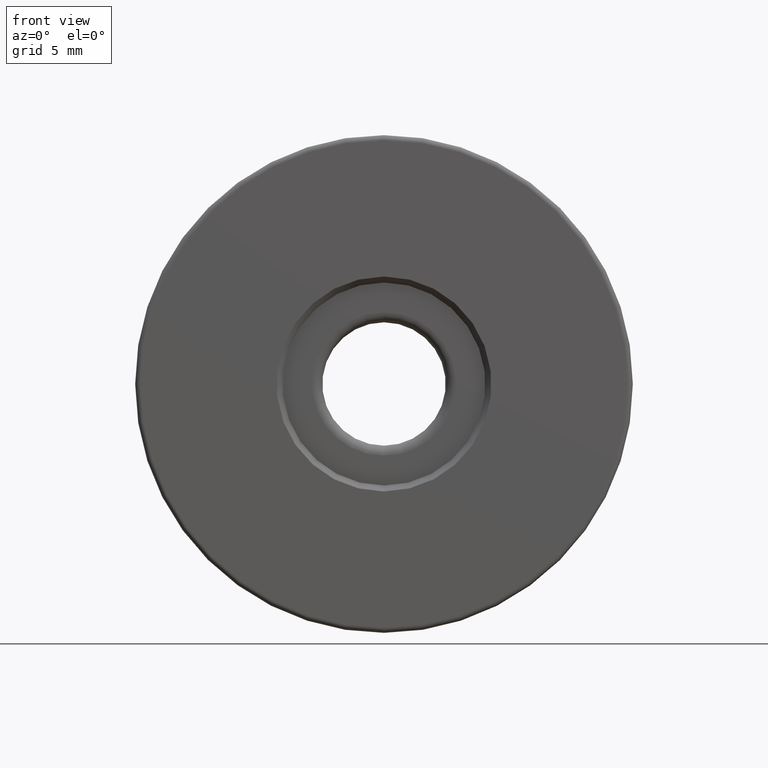
[diagram: clean part render]
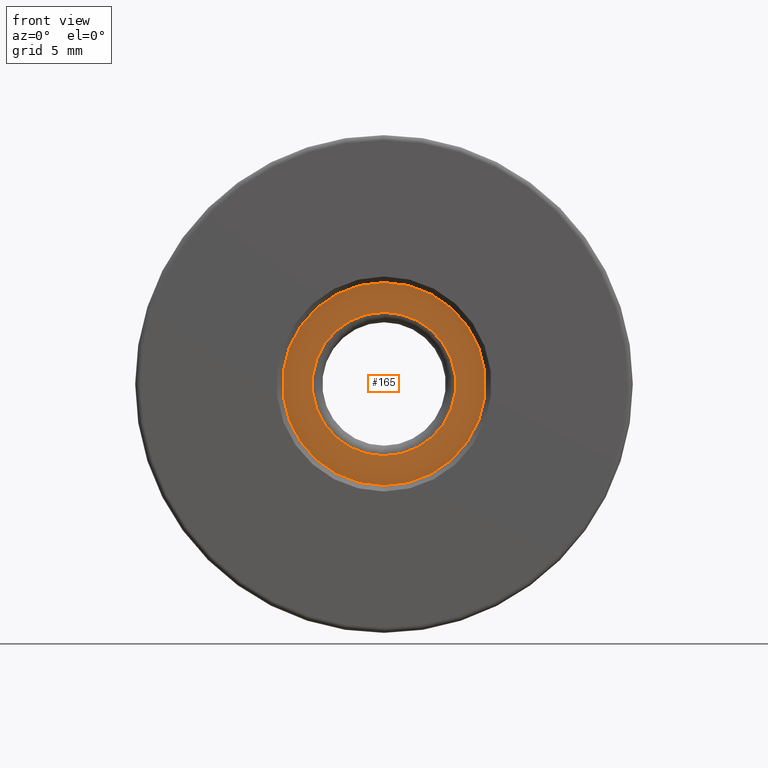
[diagram: same view with one face highlighted and labeled with its STEP entity id]
A machine part, front view. The second image highlights one B-rep face of the part: STEP entity #165.
In plain terms, the highlighted planar face has unit normal (0, -1, 0).
Its self-contained STEP definition (entity closure, byte-faithful):
#19 = ORIENTED_EDGE ( 'NONE', *, *, #27, .F. ) ;
#25 = AXIS2_PLACEMENT_3D ( 'NONE', #484, #236, #429 ) ;
#27 = EDGE_CURVE ( 'NONE', #131, #246, #195, .T. ) ;
#44 = DIRECTION ( 'NONE',  ( 0.0000000000000000000, 0.0000000000000000000, -1.000000000000000000 ) ) ;
#88 = FACE_BOUND ( 'NONE', #187, .T. ) ;
#95 = DIRECTION ( 'NONE',  ( 0.0000000000000000000, 0.0000000000000000000, 1.000000000000000000 ) ) ;
#131 = VERTEX_POINT ( 'NONE', #253 ) ;
#150 = DIRECTION ( 'NONE',  ( -0.0000000000000000000, 1.000000000000000000, -0.0000000000000000000 ) ) ;
#165 = ADVANCED_FACE ( 'NONE', ( #88, #613 ), #229, .T. ) ;
#171 = VERTEX_POINT ( 'NONE', #374 ) ;
#182 = DIRECTION ( 'NONE',  ( 0.0000000000000000000, 0.0000000000000000000, 1.000000000000000000 ) ) ;
#184 = CIRCLE ( 'NONE', #216, 3.599999999999999201 ) ;
#187 = EDGE_LOOP ( 'NONE', ( #552, #570 ) ) ;
#195 = CIRCLE ( 'NONE', #310, 5.100000000000000533 ) ;
#216 = AXIS2_PLACEMENT_3D ( 'NONE', #359, #384, #44 ) ;
#229 = PLANE ( 'NONE',  #425 ) ;
#236 = DIRECTION ( 'NONE',  ( -0.0000000000000000000, 1.000000000000000000, -0.0000000000000000000 ) ) ;
#246 = VERTEX_POINT ( 'NONE', #255 ) ;
#253 = CARTESIAN_POINT ( 'NONE',  ( -4.682026255059964726, -6.294975976998275158, 19.90000000000000213 ) ) ;
#255 = CARTESIAN_POINT ( 'NONE',  ( -4.682026255059963837, -6.294975976998275158, 30.10000000000000142 ) ) ;
#280 = ORIENTED_EDGE ( 'NONE', *, *, #308, .F. ) ;
#294 = CIRCLE ( 'NONE', #456, 5.100000000000000533 ) ;
#303 = EDGE_CURVE ( 'NONE', #171, #420, #184, .T. ) ;
#308 = EDGE_CURVE ( 'NONE', #246, #131, #294, .T. ) ;
#310 = AXIS2_PLACEMENT_3D ( 'NONE', #459, #559, #361 ) ;
#359 = CARTESIAN_POINT ( 'NONE',  ( -4.682026255059964726, -6.294975976998275158, 25.00000000000000000 ) ) ;
#361 = DIRECTION ( 'NONE',  ( 0.0000000000000000000, 0.0000000000000000000, 1.000000000000000000 ) ) ;
#374 = CARTESIAN_POINT ( 'NONE',  ( -4.682026255059964726, -6.294975976998275158, 21.40000000000000213 ) ) ;
#380 = CARTESIAN_POINT ( 'NONE',  ( -4.682026255059964726, -6.294975976998275158, 25.00000000000000000 ) ) ;
#383 = EDGE_CURVE ( 'NONE', #420, #171, #398, .T. ) ;
#384 = DIRECTION ( 'NONE',  ( -0.0000000000000000000, 1.000000000000000000, -0.0000000000000000000 ) ) ;
#398 = CIRCLE ( 'NONE', #25, 3.599999999999999201 ) ;
#420 = VERTEX_POINT ( 'NONE', #576 ) ;
#424 = CARTESIAN_POINT ( 'NONE',  ( -4.682026255059964726, -6.294975976998275158, 25.00000000000000000 ) ) ;
#425 = AXIS2_PLACEMENT_3D ( 'NONE', #380, #606, #182 ) ;
#429 = DIRECTION ( 'NONE',  ( 0.0000000000000000000, 0.0000000000000000000, -1.000000000000000000 ) ) ;
#434 = EDGE_LOOP ( 'NONE', ( #19, #280 ) ) ;
#456 = AXIS2_PLACEMENT_3D ( 'NONE', #424, #150, #95 ) ;
#459 = CARTESIAN_POINT ( 'NONE',  ( -4.682026255059964726, -6.294975976998275158, 25.00000000000000000 ) ) ;
#484 = CARTESIAN_POINT ( 'NONE',  ( -4.682026255059964726, -6.294975976998275158, 25.00000000000000000 ) ) ;
#552 = ORIENTED_EDGE ( 'NONE', *, *, #303, .T. ) ;
#559 = DIRECTION ( 'NONE',  ( -0.0000000000000000000, 1.000000000000000000, -0.0000000000000000000 ) ) ;
#570 = ORIENTED_EDGE ( 'NONE', *, *, #383, .T. ) ;
#576 = CARTESIAN_POINT ( 'NONE',  ( -4.682026255059962949, -6.294975976998275158, 28.60000000000000142 ) ) ;
#606 = DIRECTION ( 'NONE',  ( 0.0000000000000000000, -1.000000000000000000, 0.0000000000000000000 ) ) ;
#613 = FACE_OUTER_BOUND ( 'NONE', #434, .T. ) ;